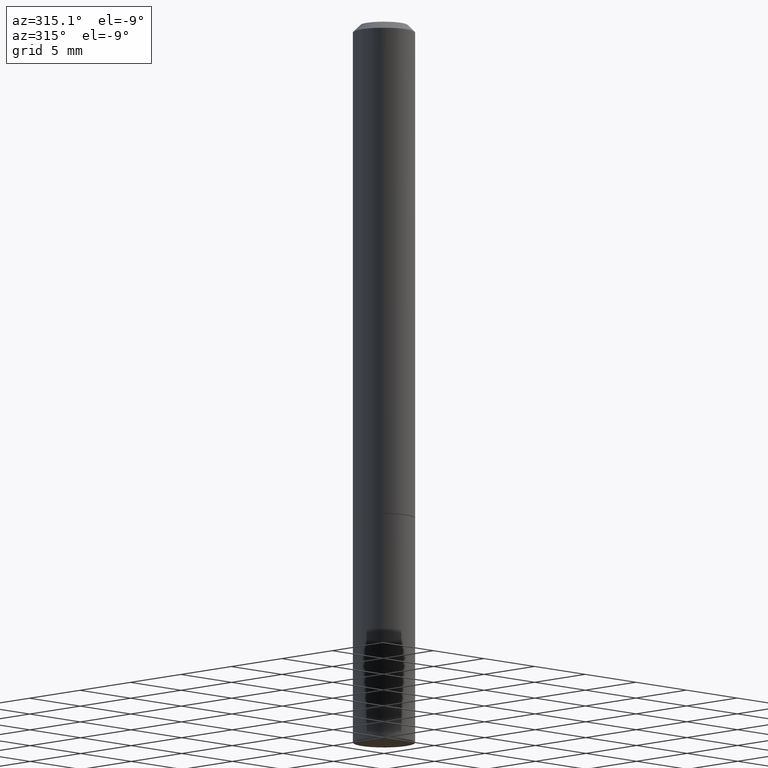
[diagram: clean part render]
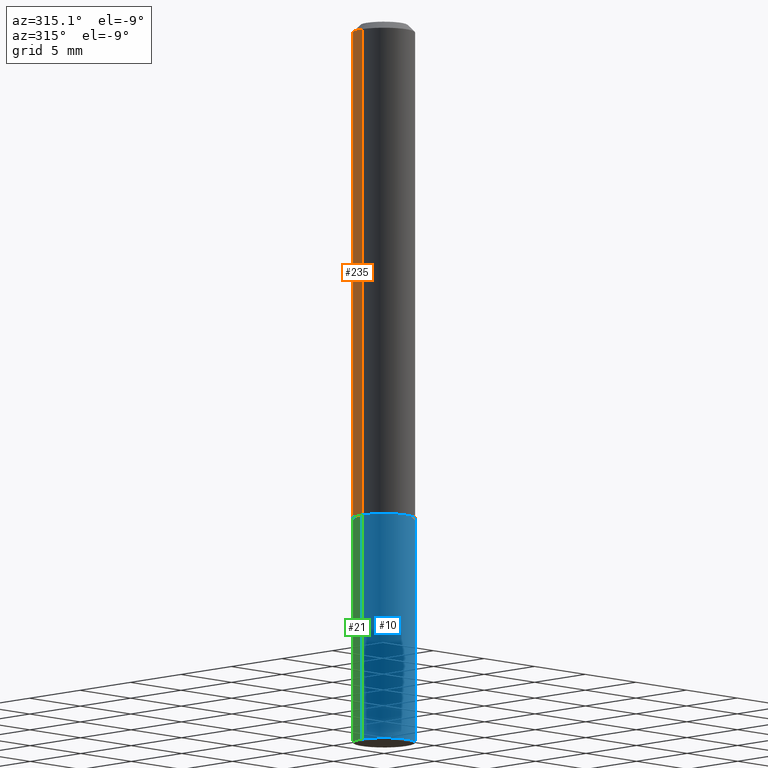
[diagram: same view with three faces highlighted in distinct colors, each labeled with its STEP entity id]
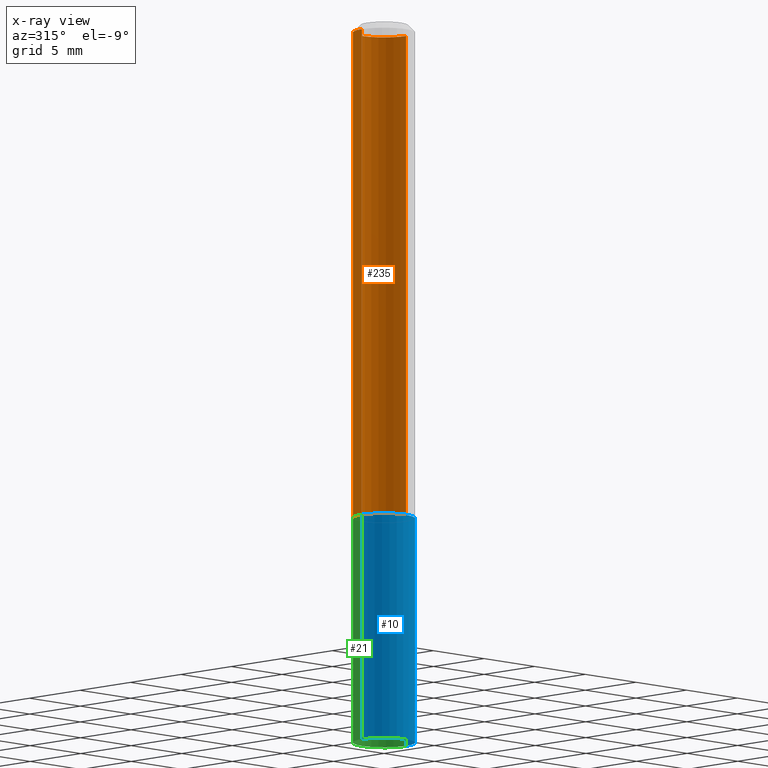
[diagram: x-ray of the same camera — body ghosted, the three highlighted faces saturated]
A machine part, auxiliary view with three faces highlighted in distinct colors.
The next image is the same camera in x-ray (body ghosted, the three faces saturated) — at least one of them is partly hidden behind the body in this view.
Their STEP definitions:

[orange] entity #235 — the highlighted cylindrical surface (edge-blend (fillet) strip) has radius 2.1831 mm, axis along (-0, 0, 1).
#17 = EDGE_CURVE ( 'NONE', #361, #313, #340, .T. ) ;
#18 = DIRECTION ( 'NONE',  ( -2.445468806185136877E-29, 3.491481338843145188E-15, 1.000000000000000000 ) ) ;
#22 = CARTESIAN_POINT ( 'NONE',  ( -0.08594999999999981821, 5.303560153702704350E-16, -0.02000000000000002123 ) ) ;
#31 = ORIENTED_EDGE ( 'NONE', *, *, #292, .F. ) ;
#32 = AXIS2_PLACEMENT_3D ( 'NONE', #281, #277, #344 ) ;
#35 = ORIENTED_EDGE ( 'NONE', *, *, #17, .T. ) ;
#77 = VECTOR ( 'NONE', #111, 39.37007874015748143 ) ;
#81 = LINE ( 'NONE', #377, #136 ) ;
#83 = DIRECTION ( 'NONE',  ( 1.000000000000000000, -6.982962677686267499E-15, 4.876176775795936353E-29 ) ) ;
#101 = VERTEX_POINT ( 'NONE', #22 ) ;
#111 = DIRECTION ( 'NONE',  ( -2.445468806185136877E-29, 3.491481338843145188E-15, 1.000000000000000000 ) ) ;
#112 = CARTESIAN_POINT ( 'NONE',  ( -0.08594999999999997087, -1.822851011787864341E-15, -1.373999999999999888 ) ) ;
#118 = VERTEX_POINT ( 'NONE', #202 ) ;
#124 = ORIENTED_EDGE ( 'NONE', *, *, #130, .T. ) ;
#130 = EDGE_CURVE ( 'NONE', #313, #101, #260, .T. ) ;
#136 = VECTOR ( 'NONE', #18, 39.37007874015748143 ) ;
#147 = CARTESIAN_POINT ( 'NONE',  ( 4.890937612370278413E-31, -6.982962677686297772E-17, -0.02000000000000002123 ) ) ;
#168 = FACE_OUTER_BOUND ( 'NONE', #198, .T. ) ;
#198 = EDGE_LOOP ( 'NONE', ( #35, #124, #31, #272 ) ) ;
#202 = CARTESIAN_POINT ( 'NONE',  ( 0.08594999999999981821, -6.594894296853248617E-16, -0.02000000000000002123 ) ) ;
#234 = DIRECTION ( 'NONE',  ( -2.445468806185136597E-29, 3.491481338843145583E-15, 1.000000000000000000 ) ) ;
#235 = ADVANCED_FACE ( 'NONE', ( #168 ), #352, .T. ) ;
#242 = DIRECTION ( 'NONE',  ( -2.445468806185136597E-29, 3.491481338843145583E-15, 1.000000000000000000 ) ) ;
#252 = EDGE_CURVE ( 'NONE', #361, #118, #81, .T. ) ;
#260 = LINE ( 'NONE', #322, #77 ) ;
#263 = CARTESIAN_POINT ( 'NONE',  ( 0.000000000000000000, 0.000000000000000000, 0.000000000000000000 ) ) ;
#270 = DIRECTION ( 'NONE',  ( 1.000000000000000000, -6.982962677686267499E-15, 0.000000000000000000 ) ) ;
#272 = ORIENTED_EDGE ( 'NONE', *, *, #252, .F. ) ;
#277 = DIRECTION ( 'NONE',  ( -2.445468806185136597E-29, 3.491481338843145583E-15, 1.000000000000000000 ) ) ;
#281 = CARTESIAN_POINT ( 'NONE',  ( 3.360074139698377778E-29, -4.797295359570481134E-15, -1.373999999999999888 ) ) ;
#292 = EDGE_CURVE ( 'NONE', #118, #101, #333, .T. ) ;
#304 = AXIS2_PLACEMENT_3D ( 'NONE', #263, #234, #83 ) ;
#313 = VERTEX_POINT ( 'NONE', #112 ) ;
#322 = CARTESIAN_POINT ( 'NONE',  ( -0.08594999999999990148, 6.107114813858054097E-16, -4.227824710074086685E-30 ) ) ;
#333 = CIRCLE ( 'NONE', #387, 0.08594999999999981821 ) ;
#340 = CIRCLE ( 'NONE', #32, 0.08594999999999998475 ) ;
#344 = DIRECTION ( 'NONE',  ( 1.000000000000000000, -6.982962677686261977E-15, 0.000000000000000000 ) ) ;
#352 = CYLINDRICAL_SURFACE ( 'NONE', #304, 0.08594999999999990148 ) ;
#359 = CARTESIAN_POINT ( 'NONE',  ( 0.08594999999999998475, -5.397481001717615360E-15, -1.373999999999999888 ) ) ;
#361 = VERTEX_POINT ( 'NONE', #359 ) ;
#377 = CARTESIAN_POINT ( 'NONE',  ( 0.08594999999999990148, -6.001856421471340290E-16, 4.191073938796602335E-30 ) ) ;
#387 = AXIS2_PLACEMENT_3D ( 'NONE', #147, #242, #270 ) ;

[blue] entity #10 — the highlighted cylindrical surface (edge-blend (fillet) strip) has radius 2.1831 mm, axis along (-0, 0, 1).
#8 = ORIENTED_EDGE ( 'NONE', *, *, #390, .F. ) ;
#10 = ADVANCED_FACE ( 'NONE', ( #75 ), #275, .T. ) ;
#11 = CIRCLE ( 'NONE', #222, 0.08594999999999998475 ) ;
#51 = CARTESIAN_POINT ( 'NONE',  ( 4.890937612370273194E-29, -6.982962677686291165E-15, -2.000000000000000000 ) ) ;
#63 = CARTESIAN_POINT ( 'NONE',  ( 0.08594999999999990148, -7.572622480594752926E-15, -2.000000000000000000 ) ) ;
#75 = FACE_OUTER_BOUND ( 'NONE', #211, .T. ) ;
#80 = CARTESIAN_POINT ( 'NONE',  ( -0.08594999999999990148, -6.382777035539157728E-15, -2.000000000000000000 ) ) ;
#107 = DIRECTION ( 'NONE',  ( -2.445468806185136877E-29, 3.491481338843145188E-15, 1.000000000000000000 ) ) ;
#110 = VECTOR ( 'NONE', #325, 39.37007874015748143 ) ;
#115 = AXIS2_PLACEMENT_3D ( 'NONE', #51, #378, #354 ) ;
#119 = DIRECTION ( 'NONE',  ( 1.000000000000000000, -6.982962677686261977E-15, 0.000000000000000000 ) ) ;
#127 = VERTEX_POINT ( 'NONE', #140 ) ;
#134 = CARTESIAN_POINT ( 'NONE',  ( 0.08594999999999998475, -5.400972483056459156E-15, -1.375000000000000000 ) ) ;
#137 = CARTESIAN_POINT ( 'NONE',  ( -0.08594999999999998475, 6.107114813858060014E-16, -4.227824710074091590E-30 ) ) ;
#140 = CARTESIAN_POINT ( 'NONE',  ( -0.08594999999999998475, -5.281163277912002145E-15, -1.375000000000000000 ) ) ;
#149 = VERTEX_POINT ( 'NONE', #80 ) ;
#150 = VERTEX_POINT ( 'NONE', #134 ) ;
#160 = ORIENTED_EDGE ( 'NONE', *, *, #249, .T. ) ;
#161 = AXIS2_PLACEMENT_3D ( 'NONE', #221, #165, #342 ) ;
#165 = DIRECTION ( 'NONE',  ( -2.445468806185136597E-29, 3.491481338843145583E-15, 1.000000000000000000 ) ) ;
#174 = CARTESIAN_POINT ( 'NONE',  ( 0.08594999999999998475, -6.001856421471345220E-16, 4.191073938796606539E-30 ) ) ;
#181 = DIRECTION ( 'NONE',  ( -2.445468806185136597E-29, 3.491481338843145583E-15, 1.000000000000000000 ) ) ;
#205 = LINE ( 'NONE', #137, #269 ) ;
#206 = EDGE_CURVE ( 'NONE', #149, #329, #305, .T. ) ;
#211 = EDGE_LOOP ( 'NONE', ( #385, #365, #160, #8 ) ) ;
#221 = CARTESIAN_POINT ( 'NONE',  ( 0.000000000000000000, 0.000000000000000000, 0.000000000000000000 ) ) ;
#222 = AXIS2_PLACEMENT_3D ( 'NONE', #291, #181, #119 ) ;
#249 = EDGE_CURVE ( 'NONE', #329, #150, #284, .T. ) ;
#262 = EDGE_CURVE ( 'NONE', #149, #127, #205, .T. ) ;
#269 = VECTOR ( 'NONE', #107, 39.37007874015748143 ) ;
#275 = CYLINDRICAL_SURFACE ( 'NONE', #161, 0.08594999999999998475 ) ;
#284 = LINE ( 'NONE', #174, #110 ) ;
#291 = CARTESIAN_POINT ( 'NONE',  ( 3.362519608504562260E-29, -4.800786840909324930E-15, -1.375000000000000000 ) ) ;
#305 = CIRCLE ( 'NONE', #115, 0.08594999999999998475 ) ;
#325 = DIRECTION ( 'NONE',  ( -2.445468806185136877E-29, 3.491481338843145188E-15, 1.000000000000000000 ) ) ;
#329 = VERTEX_POINT ( 'NONE', #63 ) ;
#342 = DIRECTION ( 'NONE',  ( 1.000000000000000000, -6.982962677686266711E-15, 4.876176775795936353E-29 ) ) ;
#354 = DIRECTION ( 'NONE',  ( 1.000000000000000000, -6.982962677686261977E-15, 0.000000000000000000 ) ) ;
#365 = ORIENTED_EDGE ( 'NONE', *, *, #206, .T. ) ;
#378 = DIRECTION ( 'NONE',  ( -2.445468806185136597E-29, 3.491481338843145583E-15, 1.000000000000000000 ) ) ;
#385 = ORIENTED_EDGE ( 'NONE', *, *, #262, .F. ) ;
#390 = EDGE_CURVE ( 'NONE', #127, #150, #11, .T. ) ;

[green] entity #21 — the highlighted cylindrical surface (edge-blend (fillet) strip) has radius 2.1831 mm, axis along (-0, 0, 1).
#21 = ADVANCED_FACE ( 'NONE', ( #72 ), #318, .T. ) ;
#34 = DIRECTION ( 'NONE',  ( -2.445468806185136597E-29, 3.491481338843145583E-15, 1.000000000000000000 ) ) ;
#48 = EDGE_CURVE ( 'NONE', #150, #127, #195, .T. ) ;
#63 = CARTESIAN_POINT ( 'NONE',  ( 0.08594999999999990148, -7.572622480594752926E-15, -2.000000000000000000 ) ) ;
#72 = FACE_OUTER_BOUND ( 'NONE', #279, .T. ) ;
#80 = CARTESIAN_POINT ( 'NONE',  ( -0.08594999999999990148, -6.382777035539157728E-15, -2.000000000000000000 ) ) ;
#93 = DIRECTION ( 'NONE',  ( 1.000000000000000000, -6.982962677686261977E-15, 0.000000000000000000 ) ) ;
#107 = DIRECTION ( 'NONE',  ( -2.445468806185136877E-29, 3.491481338843145188E-15, 1.000000000000000000 ) ) ;
#110 = VECTOR ( 'NONE', #325, 39.37007874015748143 ) ;
#127 = VERTEX_POINT ( 'NONE', #140 ) ;
#134 = CARTESIAN_POINT ( 'NONE',  ( 0.08594999999999998475, -5.400972483056459156E-15, -1.375000000000000000 ) ) ;
#135 = AXIS2_PLACEMENT_3D ( 'NONE', #240, #34, #93 ) ;
#137 = CARTESIAN_POINT ( 'NONE',  ( -0.08594999999999998475, 6.107114813858060014E-16, -4.227824710074091590E-30 ) ) ;
#140 = CARTESIAN_POINT ( 'NONE',  ( -0.08594999999999998475, -5.281163277912002145E-15, -1.375000000000000000 ) ) ;
#149 = VERTEX_POINT ( 'NONE', #80 ) ;
#150 = VERTEX_POINT ( 'NONE', #134 ) ;
#151 = ORIENTED_EDGE ( 'NONE', *, *, #48, .F. ) ;
#159 = CARTESIAN_POINT ( 'NONE',  ( 3.362519608504562260E-29, -4.800786840909324930E-15, -1.375000000000000000 ) ) ;
#172 = DIRECTION ( 'NONE',  ( -2.445468806185136597E-29, 3.491481338843145583E-15, 1.000000000000000000 ) ) ;
#174 = CARTESIAN_POINT ( 'NONE',  ( 0.08594999999999998475, -6.001856421471345220E-16, 4.191073938796606539E-30 ) ) ;
#177 = AXIS2_PLACEMENT_3D ( 'NONE', #376, #172, #296 ) ;
#195 = CIRCLE ( 'NONE', #257, 0.08594999999999998475 ) ;
#205 = LINE ( 'NONE', #137, #269 ) ;
#209 = ORIENTED_EDGE ( 'NONE', *, *, #262, .T. ) ;
#237 = ORIENTED_EDGE ( 'NONE', *, *, #249, .F. ) ;
#240 = CARTESIAN_POINT ( 'NONE',  ( 4.890937612370273194E-29, -6.982962677686291165E-15, -2.000000000000000000 ) ) ;
#249 = EDGE_CURVE ( 'NONE', #329, #150, #284, .T. ) ;
#257 = AXIS2_PLACEMENT_3D ( 'NONE', #159, #282, #348 ) ;
#262 = EDGE_CURVE ( 'NONE', #149, #127, #205, .T. ) ;
#269 = VECTOR ( 'NONE', #107, 39.37007874015748143 ) ;
#279 = EDGE_LOOP ( 'NONE', ( #335, #209, #151, #237 ) ) ;
#282 = DIRECTION ( 'NONE',  ( -2.445468806185136597E-29, 3.491481338843145583E-15, 1.000000000000000000 ) ) ;
#284 = LINE ( 'NONE', #174, #110 ) ;
#296 = DIRECTION ( 'NONE',  ( 1.000000000000000000, -6.982962677686266711E-15, 4.876176775795936353E-29 ) ) ;
#315 = EDGE_CURVE ( 'NONE', #329, #149, #374, .T. ) ;
#318 = CYLINDRICAL_SURFACE ( 'NONE', #177, 0.08594999999999998475 ) ;
#325 = DIRECTION ( 'NONE',  ( -2.445468806185136877E-29, 3.491481338843145188E-15, 1.000000000000000000 ) ) ;
#329 = VERTEX_POINT ( 'NONE', #63 ) ;
#335 = ORIENTED_EDGE ( 'NONE', *, *, #315, .T. ) ;
#348 = DIRECTION ( 'NONE',  ( 1.000000000000000000, -6.982962677686261977E-15, 0.000000000000000000 ) ) ;
#374 = CIRCLE ( 'NONE', #135, 0.08594999999999998475 ) ;
#376 = CARTESIAN_POINT ( 'NONE',  ( 0.000000000000000000, 0.000000000000000000, 0.000000000000000000 ) ) ;